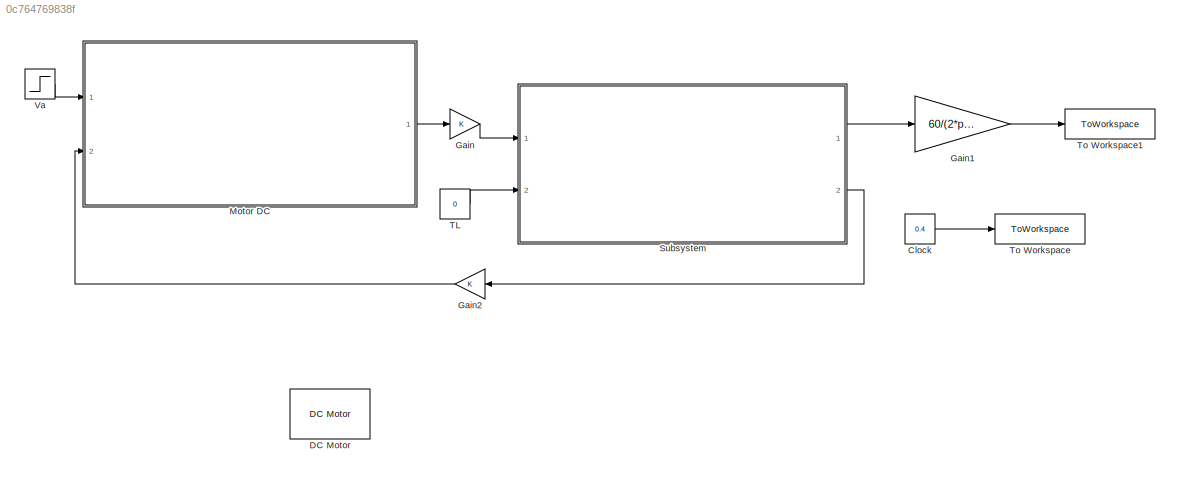
MODEL slx_0c764769838f
KIND model
CONFIG AbsTol = auto
CONFIG EnableMultiTasking = off
CONFIG FixedStep = auto
CONFIG MaxStep = auto
CONFIG MinStep = auto
CONFIG RelTol = 1e-3
CONFIG SampleTimeConstraint = Unconstrained
CONFIG SolverName = VariableStepAuto
CONFIG StartTime = 0.0
CONFIG StopTime = 10.0
BLOCK [Constant] Clock
  Value = 0.4
BLOCK [Reference] DC Motor  REF=ee_lib/Electromechanical/Brushed Motors/DC Motor
  NameLocation = right
  Ports = [0, 0, 0, 0, 0, 2, 2]
  SourceBlock = ee_lib/Electromechanical/Brushed Motors/DC Motor
  SourceProductBaseCode = PS
  SourceType = DC Motor
BLOCK [Gain] Gain
  Gain = K
BLOCK [Gain] Gain1
  Gain = 60/(2*pi)
BLOCK [Gain] Gain2
  Gain = K
  NameLocation = top
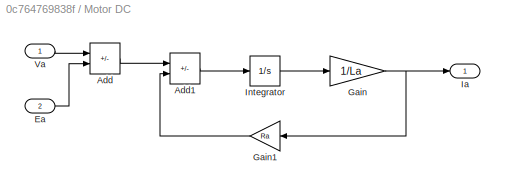
BLOCK [SubSystem] Motor DC
  Ports = [2, 1]
  RequestExecContextInheritance = off
BLOCK [Sum] Motor DC/Add
  IconShape = rectangular
  Inputs = +-
  Ports = [2, 1]
BLOCK [Sum] Motor DC/Add1
  IconShape = rectangular
  Inputs = +-
  Ports = [2, 1]
BLOCK [Inport] Motor DC/Ea
  Port = 2
BLOCK [Gain] Motor DC/Gain
  Gain = 1/La
BLOCK [Gain] Motor DC/Gain1
  Gain = Ra
  NameLocation = top
BLOCK [Outport] Motor DC/Ia
BLOCK [Integrator] Motor DC/Integrator
  Ports = [1, 1]
BLOCK [Inport] Motor DC/Va
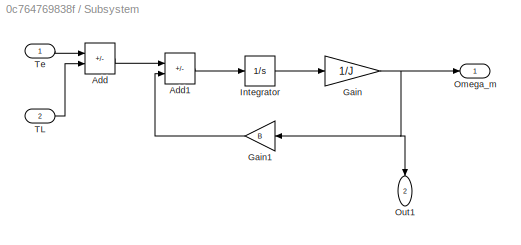
BLOCK [SubSystem] Subsystem
  Ports = [2, 2]
  RequestExecContextInheritance = off
BLOCK [Sum] Subsystem/Add
  IconShape = rectangular
  Inputs = +-
  Ports = [2, 1]
BLOCK [Sum] Subsystem/Add1
  IconShape = rectangular
  Inputs = +-
  Ports = [2, 1]
BLOCK [Gain] Subsystem/Gain
  Gain = 1/J
BLOCK [Gain] Subsystem/Gain1
  Gain = B
  NameLocation = top
BLOCK [Integrator] Subsystem/Integrator
  Ports = [1, 1]
BLOCK [Outport] Subsystem/Omega_m
BLOCK [Outport] Subsystem/Out1
  NameLocation = left
  Port = 2
BLOCK [Inport] Subsystem/TL
  Port = 2
BLOCK [Inport] Subsystem/Te
BLOCK [Constant] TL
  Value = 0
BLOCK [ToWorkspace] To Workspace
  FixptAsFi = on
  MaxDataPoints = inf
  Ports = [1]
  SampleTime = -1
  SaveFormat = Timeseries
  VariableName = t
BLOCK [ToWorkspace] To Workspace1
  FixptAsFi = on
  MaxDataPoints = inf
  Ports = [1]
  SampleTime = -1
  SaveFormat = Timeseries
  VariableName = Omega_m_rpm
BLOCK [Step] Va
  After = 70
  SampleTime = 0
LINE Clock:1 -> To Workspace:1
LINE Gain1:1 -> To Workspace1:1
LINE Gain2:1 -> Motor DC:2
LINE Gain:1 -> Subsystem:1
LINE Motor DC/Add1:1 -> Motor DC/Integrator:1
LINE Motor DC/Add:1 -> Motor DC/Add1:1
LINE Motor DC/Ea:1 -> Motor DC/Add:2
LINE Motor DC/Gain1:1 -> Motor DC/Add1:2
NET Motor DC/Gain:1 -> Motor DC/Gain1:1, Motor DC/Ia:1
LINE Motor DC/Integrator:1 -> Motor DC/Gain:1
LINE Motor DC/Va:1 -> Motor DC/Add:1
LINE Motor DC:1 -> Gain:1
LINE Subsystem/Add1:1 -> Subsystem/Integrator:1
LINE Subsystem/Add:1 -> Subsystem/Add1:1
LINE Subsystem/Gain1:1 -> Subsystem/Add1:2
NET Subsystem/Gain:1 -> Subsystem/Gain1:1, Subsystem/Omega_m:1, Subsystem/Out1:1
LINE Subsystem/Integrator:1 -> Subsystem/Gain:1
LINE Subsystem/TL:1 -> Subsystem/Add:2
LINE Subsystem/Te:1 -> Subsystem/Add:1
LINE Subsystem:1 -> Gain1:1
LINE Subsystem:2 -> Gain2:1
LINE TL:1 -> Subsystem:2
LINE Va:1 -> Motor DC:1
note: NET lines group one-source signal fan-out (src -> all destinations, sorted); 1:1 wires keep LINE
